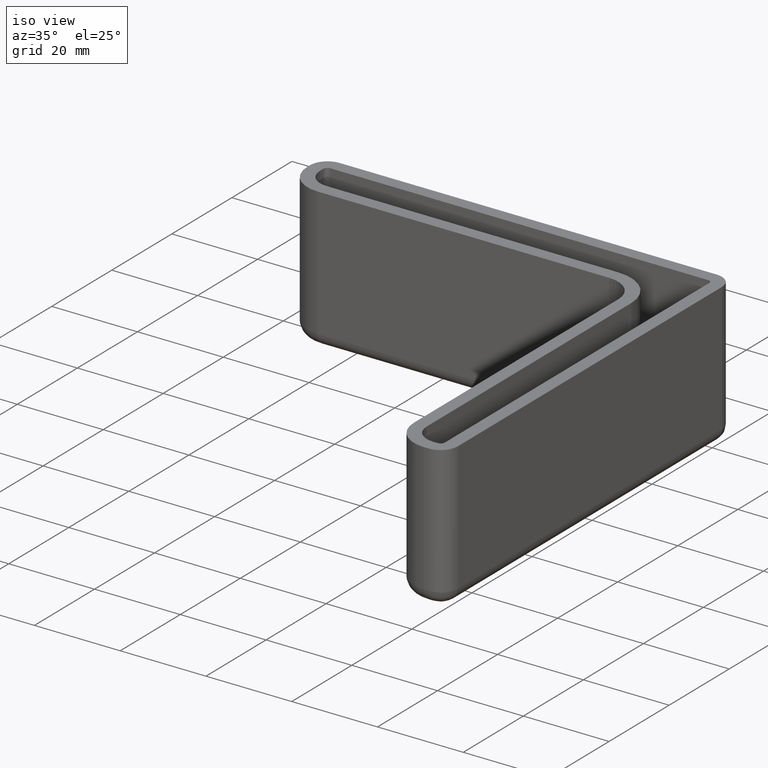
[diagram: clean part render]
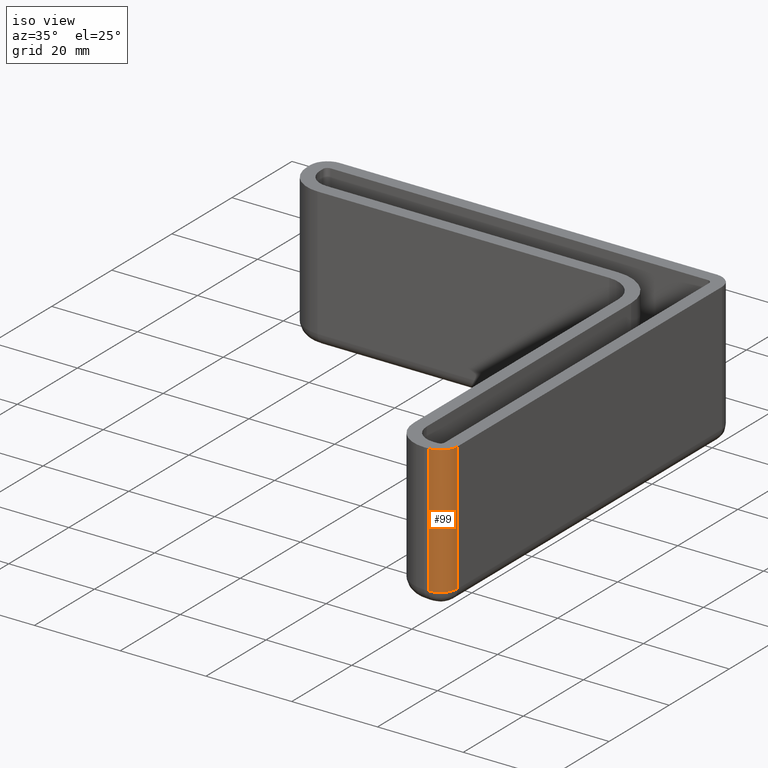
[diagram: same view with one face highlighted and labeled with its STEP entity id]
A machine part, iso view. The second image highlights one B-rep face of the part: STEP entity #99.
In plain terms, the highlighted cylindrical surface (edge-blend (fillet) strip) has radius 4 mm, axis along (-0, 0, -1).
Its self-contained STEP definition (entity closure, byte-faithful):
#99 = ADVANCED_FACE( '', ( #164 ), #165, .T. );
#164 = FACE_OUTER_BOUND( '', #288, .T. );
#165 = CYLINDRICAL_SURFACE( '', #289, 4.00000000000000 );
#288 = EDGE_LOOP( '', ( #513, #514, #515, #516 ) );
#289 = AXIS2_PLACEMENT_3D( '', #517, #518, #519 );
#513 = ORIENTED_EDGE( '', *, *, #694, .F. );
#514 = ORIENTED_EDGE( '', *, *, #703, .T. );
#515 = ORIENTED_EDGE( '', *, *, #656, .T. );
#516 = ORIENTED_EDGE( '', *, *, #704, .T. );
#517 = CARTESIAN_POINT( '', ( -1.00000000000001, -89.0000000000000, -30.0000000000000 ) );
#518 = DIRECTION( '', ( -3.58678896750442E-017, 8.65927457071936E-017, -1.00000000000000 ) );
#519 = DIRECTION( '', ( 0.707106781186542, -0.707106781186553, -8.65927457071938E-017 ) );
#656 = EDGE_CURVE( '', #785, #786, #787, .T. );
#694 = EDGE_CURVE( '', #847, #715, #850, .T. );
#703 = EDGE_CURVE( '', #847, #785, #859, .T. );
#704 = EDGE_CURVE( '', #786, #715, #860, .T. );
#715 = VERTEX_POINT( '', #871 );
#785 = VERTEX_POINT( '', #963 );
#786 = VERTEX_POINT( '', #964 );
#787 = CIRCLE( '', #965, 4.00000000000000 );
#847 = VERTEX_POINT( '', #1039 );
#850 = CIRCLE( '', #1043, 4.00000000000000 );
#859 = LINE( '', #1058, #1059 );
#860 = LINE( '', #1060, #1061 );
#871 = CARTESIAN_POINT( '', ( -1.00000000000001, -93.0000000000000, -30.0000000000000 ) );
#963 = CARTESIAN_POINT( '', ( 2.99999999999999, -89.0000000000000, -8.16105878667191E-015 ) );
#964 = CARTESIAN_POINT( '', ( -1.00000000000001, -93.0000000000000, -8.85380075232946E-015 ) );
#965 = AXIS2_PLACEMENT_3D( '', #1150, #1151, #1152 );
#1039 = CARTESIAN_POINT( '', ( 3.00000000000000, -89.0000000000000, -30.0000000000000 ) );
#1043 = AXIS2_PLACEMENT_3D( '', #1234, #1235, #1236 );
#1058 = CARTESIAN_POINT( '', ( 3.00000000000000, -89.0000000000000, -30.0000000000000 ) );
#1059 = VECTOR( '', #1249, 1000.00000000000 );
#1060 = CARTESIAN_POINT( '', ( -1.00000000000001, -93.0000000000000, -30.0000000000000 ) );
#1061 = VECTOR( '', #1250, 1000.00000000000 );
#1150 = CARTESIAN_POINT( '', ( -1.00000000000001, -89.0000000000000, -8.50742976950068E-015 ) );
#1151 = DIRECTION( '', ( -3.58678896750442E-017, 8.65927457071936E-017, -1.00000000000000 ) );
#1152 = DIRECTION( '', ( 0.707106781186542, -0.707106781186553, -8.65927457071938E-017 ) );
#1234 = CARTESIAN_POINT( '', ( -1.00000000000001, -89.0000000000000, -30.0000000000000 ) );
#1235 = DIRECTION( '', ( -3.58678896750442E-017, 8.65927457071936E-017, -1.00000000000000 ) );
#1236 = DIRECTION( '', ( 0.707106781186546, -0.707106781186549, -8.65927457071936E-017 ) );
#1249 = DIRECTION( '', ( 3.58678896750442E-017, -8.65927457071936E-017, 1.00000000000000 ) );
#1250 = DIRECTION( '', ( -3.58678896750442E-017, 8.65927457071936E-017, -1.00000000000000 ) );